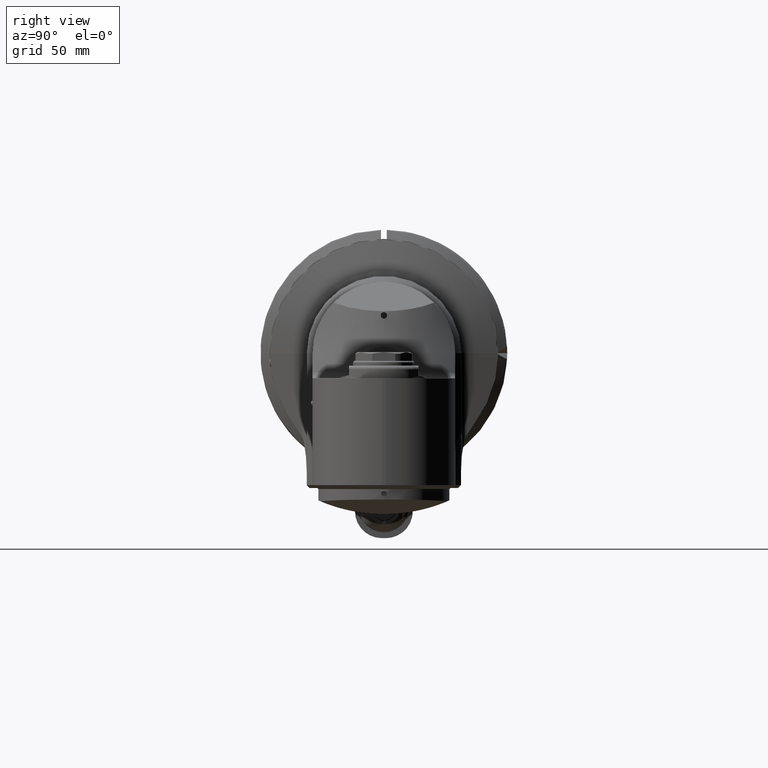
[diagram: clean part render]
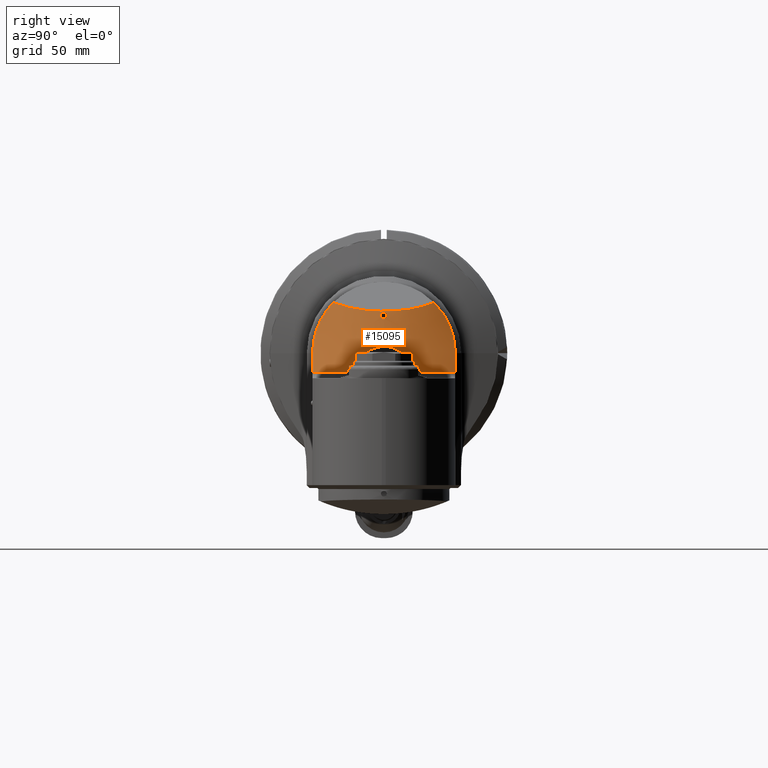
[diagram: same view with one face highlighted and labeled with its STEP entity id]
A machine part, right view. The second image highlights one B-rep face of the part: STEP entity #15095.
In plain terms, the highlighted conical surface has half-angle 15 deg.
Its self-contained STEP definition (entity closure, byte-faithful):
#64=ELLIPSE('',#16504,45.2327079516384,40.6734979024581);
#259=B_SPLINE_CURVE_WITH_KNOTS('',3,(#29457,#29458,#29459,#29460,#29461,
#29462,#29463,#29464,#29465,#29466),.UNSPECIFIED.,.F.,.F.,(4,2,2,2,4),(-3.93880779405568,
-3.93234595852805,-3.88077559646186,-3.82920523439567,-3.82510752058717),
 .UNSPECIFIED.);
#260=B_SPLINE_CURVE_WITH_KNOTS('',3,(#29472,#29473,#29474,#29475,#29476,
#29477,#29478,#29479,#29480,#29481,#29482),.UNSPECIFIED.,.F.,.F.,(4,2,2,
3,4),(-0.107238437898666,-0.103140724132375,-0.0515703620661875,0.,0.00646183552763091),
 .UNSPECIFIED.);
#261=B_SPLINE_CURVE_WITH_KNOTS('',3,(#29490,#29491,#29492,#29493,#29494,
#29495,#29496,#29497,#29498,#29499,#29500,#29501),.UNSPECIFIED.,.F.,.F.,
(4,2,2,2,2,4),(7.83011745301801,8.13771109030121,8.75014103835727,9.36257098641332,
9.97500093446938,10.7128732792265),.UNSPECIFIED.);
#262=B_SPLINE_CURVE_WITH_KNOTS('',3,(#29504,#29505,#29506,#29507,#29508,
#29509,#29510,#29511,#29512,#29513,#29514,#29515,#29516),.UNSPECIFIED.,
 .F.,.F.,(4,3,2,2,2,4),(-0.737872344757969,0.,0.612429948056057,1.22485989611211,
1.83728984416818,2.14488348145137),.UNSPECIFIED.);
#263=B_SPLINE_CURVE_WITH_KNOTS('',3,(#29519,#29520,#29521,#29522),
 .UNSPECIFIED.,.F.,.F.,(4,4),(-0.258888271933437,-0.255155175410212),
 .UNSPECIFIED.);
#264=B_SPLINE_CURVE_WITH_KNOTS('',3,(#29523,#29524,#29525,#29526,#29527,
#29528,#29529,#29530,#29531,#29532,#29533,#29534,#29535,#29536,#29537,#29538,
#29539,#29540,#29541,#29542,#29543,#29544,#29545,#29546,#29547,#29548,#29549,
#29550,#29551,#29552,#29553,#29554,#29555,#29556,#29557),.UNSPECIFIED.,
 .F.,.F.,(4,2,2,2,3,2,2,2,2,2,2,2,2,2,2,2,4),(-0.255155175410212,-0.192032972467768,
-0.128910769525324,-0.0644553847626618,0.,0.0638339596791877,0.127667919358375,
0.189299261879045,0.250930604399715,0.312561946920385,0.374193289441055,
0.438027249120242,0.50186120879943,0.566316593562091,0.630771978324753,
0.693894181267197,0.753283287686417),.UNSPECIFIED.);
#332=(
BOUNDED_CURVE()
B_SPLINE_CURVE(2,(#29348,#29349,#29350),.UNSPECIFIED.,.F.,.F.)
B_SPLINE_CURVE_WITH_KNOTS((3,3),(3.89343694831508,5.05087993316019),
 .UNSPECIFIED.)
CURVE()
GEOMETRIC_REPRESENTATION_ITEM()
RATIONAL_B_SPLINE_CURVE((1.02347810452841,1.02484759967335,1.02495644910587))
REPRESENTATION_ITEM('')
);
#333=(
BOUNDED_CURVE()
B_SPLINE_CURVE(2,(#29468,#29469,#29470),.UNSPECIFIED.,.F.,.F.)
B_SPLINE_CURVE_WITH_KNOTS((3,3),(-4.82862379861812,-0.175718801675515),
 .UNSPECIFIED.)
CURVE()
GEOMETRIC_REPRESENTATION_ITEM()
RATIONAL_B_SPLINE_CURVE((1.00518916361657,1.0713916248404,1.00518916361568))
REPRESENTATION_ITEM('')
);
#334=(
BOUNDED_CURVE()
B_SPLINE_CURVE(2,(#29486,#29487,#29488),.UNSPECIFIED.,.F.,.F.)
B_SPLINE_CURVE_WITH_KNOTS((3,3),(3.89343694831404,5.05087993314416),
 .UNSPECIFIED.)
CURVE()
GEOMETRIC_REPRESENTATION_ITEM()
RATIONAL_B_SPLINE_CURVE((1.02347810452841,1.02484759967333,1.02495644910587))
REPRESENTATION_ITEM('')
);
#486=CONICAL_SURFACE('',#16502,49.77933807096,0.261799387799149);
#3209=FACE_BOUND('',#5089,.T.);
#4176=FACE_OUTER_BOUND('',#5088,.T.);
#5088=EDGE_LOOP('',(#12613,#12614,#12615,#12616,#12617,#12618,#12619,#12620,
#12621,#12622));
#5089=EDGE_LOOP('',(#12623,#12624));
#5989=CIRCLE('',#16501,54.63629707971);
#5990=CIRCLE('',#16503,54.63629707971);
#7065=VERTEX_POINT('',#29330);
#7066=VERTEX_POINT('',#29347);
#7096=VERTEX_POINT('',#29422);
#7097=VERTEX_POINT('',#29456);
#7098=VERTEX_POINT('',#29467);
#7099=VERTEX_POINT('',#29471);
#7100=VERTEX_POINT('',#29483);
#7101=VERTEX_POINT('',#29485);
#7102=VERTEX_POINT('',#29489);
#7103=VERTEX_POINT('',#29502);
#7104=VERTEX_POINT('',#29517);
#7105=VERTEX_POINT('',#29518);
#9062=EDGE_CURVE('',#7066,#7065,#332,.T.);
#9100=EDGE_CURVE('',#7096,#7065,#5989,.T.);
#9101=EDGE_CURVE('',#7096,#7097,#259,.T.);
#9102=EDGE_CURVE('',#7097,#7098,#333,.T.);
#9103=EDGE_CURVE('',#7098,#7099,#260,.T.);
#9104=EDGE_CURVE('',#7100,#7099,#5990,.T.);
#9105=EDGE_CURVE('',#7101,#7100,#334,.T.);
#9106=EDGE_CURVE('',#7102,#7101,#261,.T.);
#9107=EDGE_CURVE('',#7103,#7102,#64,.T.);
#9108=EDGE_CURVE('',#7066,#7103,#262,.T.);
#9109=EDGE_CURVE('',#7104,#7105,#263,.T.);
#9110=EDGE_CURVE('',#7105,#7104,#264,.T.);
#12613=ORIENTED_EDGE('',*,*,#9100,.F.);
#12614=ORIENTED_EDGE('',*,*,#9101,.T.);
#12615=ORIENTED_EDGE('',*,*,#9102,.T.);
#12616=ORIENTED_EDGE('',*,*,#9103,.T.);
#12617=ORIENTED_EDGE('',*,*,#9104,.F.);
#12618=ORIENTED_EDGE('',*,*,#9105,.F.);
#12619=ORIENTED_EDGE('',*,*,#9106,.F.);
#12620=ORIENTED_EDGE('',*,*,#9107,.F.);
#12621=ORIENTED_EDGE('',*,*,#9108,.F.);
#12622=ORIENTED_EDGE('',*,*,#9062,.T.);
#12623=ORIENTED_EDGE('',*,*,#9109,.T.);
#12624=ORIENTED_EDGE('',*,*,#9110,.T.);
#15095=ADVANCED_FACE('',(#4176,#3209),#486,.T.);
#16501=AXIS2_PLACEMENT_3D('',#29454,#19702,#19703);
#16502=AXIS2_PLACEMENT_3D('',#29455,#19704,#19705);
#16503=AXIS2_PLACEMENT_3D('',#29484,#19706,#19707);
#16504=AXIS2_PLACEMENT_3D('',#29503,#19708,#19709);
#19702=DIRECTION('center_axis',(0.,1.,0.));
#19703=DIRECTION('ref_axis',(0.935940014753267,0.,-0.352159464992288));
#19704=DIRECTION('center_axis',(0.,1.,0.));
#19705=DIRECTION('ref_axis',(1.,0.,0.));
#19706=DIRECTION('center_axis',(0.,1.,0.));
#19707=DIRECTION('ref_axis',(0.735792793525998,0.,0.677206737263598));
#19708=DIRECTION('center_axis',(0.422618261740719,-0.906307787036641,0.));
#19709=DIRECTION('ref_axis',(0.906307787036641,0.422618261740719,0.));
#29330=CARTESIAN_POINT('',(90.2010566322194,10.0352760630825,-37.0000000108094));
#29347=CARTESIAN_POINT('',(86.4626845689849,-4.01972997164142E-6,-36.9999959620745));
#29348=CARTESIAN_POINT('Ctrl Pts',(86.46268456966,-3.97102103296424E-6,
-37.));
#29349=CARTESIAN_POINT('Ctrl Pts',(88.2847138334658,4.77295963239363,-37.));
#29350=CARTESIAN_POINT('Ctrl Pts',(90.2010566007878,10.0352759494438,-37.));
#29422=CARTESIAN_POINT('',(101.1362966948,10.03527618041,-19.24068914875));
#29454=CARTESIAN_POINT('Origin',(50.,10.03527618041,0.));
#29455=CARTESIAN_POINT('Origin',(50.,-8.091141610524,0.));
#29456=CARTESIAN_POINT('',(101.,9.,-18.81195199136));
#29457=CARTESIAN_POINT('Ctrl Pts',(101.136296694841,10.0352761803986,-19.24068914876));
#29458=CARTESIAN_POINT('Ctrl Pts',(101.130747459301,10.014566151421,-19.2396797084859));
#29459=CARTESIAN_POINT('Ctrl Pts',(101.125362361978,9.9938024286461,-19.2381931215031));
#29460=CARTESIAN_POINT('Ctrl Pts',(101.078503959601,9.80695310060551,-19.2205605619935));
#29461=CARTESIAN_POINT('Ctrl Pts',(101.04896924554,9.64379454947181,-19.1749750397948));
#29462=CARTESIAN_POINT('Ctrl Pts',(101.010394636083,9.32898398586055,-19.0374320645109));
#29463=CARTESIAN_POINT('Ctrl Pts',(101.001363454202,9.17735157703708,-18.9454273034241));
#29464=CARTESIAN_POINT('Ctrl Pts',(101.000047761807,9.02262305592093,-18.8293333719294));
#29465=CARTESIAN_POINT('Ctrl Pts',(101.,9.01128517062174,-18.8206896957109));
#29466=CARTESIAN_POINT('Ctrl Pts',(101.,8.99999999999688,-18.811951991364));
#29467=CARTESIAN_POINT('',(101.,9.00000000031,18.81195199168));
#29468=CARTESIAN_POINT('Ctrl Pts',(101.,8.99999999999688,-18.811951991364));
#29469=CARTESIAN_POINT('Ctrl Pts',(101.,-15.2965519985759,1.1882939077168E-10));
#29470=CARTESIAN_POINT('Ctrl Pts',(101.,9.0000000003456,18.811951991634));
#29471=CARTESIAN_POINT('',(101.1362966948,10.03527618041,19.24068914875));
#29472=CARTESIAN_POINT('Ctrl Pts',(101.,9.0000000003456,18.811951991634));
#29473=CARTESIAN_POINT('Ctrl Pts',(101.000000000001,9.0112851708553,18.8206896958889));
#29474=CARTESIAN_POINT('Ctrl Pts',(101.000047761808,9.02262305603823,18.8293333720174));
#29475=CARTESIAN_POINT('Ctrl Pts',(101.001363454202,9.17735157703706,18.9454273034241));
#29476=CARTESIAN_POINT('Ctrl Pts',(101.010394636083,9.32898398586054,19.0374320645109));
#29477=CARTESIAN_POINT('Ctrl Pts',(101.04896924554,9.64379454947181,19.1749750397948));
#29478=CARTESIAN_POINT('Ctrl Pts',(101.078503959601,9.80695310060551,19.2205605619935));
#29479=CARTESIAN_POINT('Ctrl Pts',(101.120144718983,9.9729969159082,19.2362297510948));
#29480=CARTESIAN_POINT('Ctrl Pts',(101.125362361978,9.99380242864611,19.2381931215031));
#29481=CARTESIAN_POINT('Ctrl Pts',(101.130747459301,10.014566151421,19.2396797084859));
#29482=CARTESIAN_POINT('Ctrl Pts',(101.136296694841,10.0352761803986,19.24068914876));
#29483=CARTESIAN_POINT('',(90.2010566321862,10.0352760630085,37.0000000108162));
#29484=CARTESIAN_POINT('Origin',(50.,10.03527618041,0.));
#29485=CARTESIAN_POINT('',(86.4626845689816,-4.01973773215539E-6,36.9999959620687));
#29486=CARTESIAN_POINT('Ctrl Pts',(86.4626845696567,-3.97102967282114E-6,
37.));
#29487=CARTESIAN_POINT('Ctrl Pts',(88.2847138334388,4.77295963232287,37.));
#29488=CARTESIAN_POINT('Ctrl Pts',(90.2010566007347,10.035275949298,37.));
#29489=CARTESIAN_POINT('',(86.55653924509,-26.21755940146,26.10822818636));
#29490=CARTESIAN_POINT('Ctrl Pts',(86.5565392450911,-26.2175594014586,26.108228186359));
#29491=CARTESIAN_POINT('Ctrl Pts',(86.2768888526062,-25.4966435956153,26.8321629102412));
#29492=CARTESIAN_POINT('Ctrl Pts',(86.001102874982,-24.7351619229832,27.5366436284816));
#29493=CARTESIAN_POINT('Ctrl Pts',(85.2173472460032,-22.3485524778202,29.561511092058));
#29494=CARTESIAN_POINT('Ctrl Pts',(84.7507205209947,-20.6141001046456,30.7992582378357));
#29495=CARTESIAN_POINT('Ctrl Pts',(84.0888161937487,-16.9442516970133,32.9609974858682));
#29496=CARTESIAN_POINT('Ctrl Pts',(83.8958462434458,-15.0038043822077,33.8873230671693));
#29497=CARTESIAN_POINT('Ctrl Pts',(83.8909389532353,-11.0483389589965,35.3751186117763));
#29498=CARTESIAN_POINT('Ctrl Pts',(84.0804611364451,-9.03330008657114,35.9365378272746));
#29499=CARTESIAN_POINT('Ctrl Pts',(84.8820845767981,-4.68566056015245,36.7818189686342));
#29500=CARTESIAN_POINT('Ctrl Pts',(85.5762747721496,-2.32203194516505,36.9999997481057));
#29501=CARTESIAN_POINT('Ctrl Pts',(86.462684553342,-4.01376790637453E-6,
36.9999999999998));
#29502=CARTESIAN_POINT('',(86.55653924509,-26.21755940146,-26.10822818636));
#29503=CARTESIAN_POINT('Origin',(55.1221618873939,-40.875650292684,8.88178419700125E-15));
#29504=CARTESIAN_POINT('Ctrl Pts',(86.462684553345,-4.01376003711373E-6,
-36.9999999999998));
#29505=CARTESIAN_POINT('Ctrl Pts',(85.5762747721511,-2.3220319451597,-36.9999997481062));
#29506=CARTESIAN_POINT('Ctrl Pts',(84.8820845767986,-4.68566056014976,-36.7818189686347));
#29507=CARTESIAN_POINT('Ctrl Pts',(84.4440376515328,-7.06142707450374,-36.3199153037485));
#29508=CARTESIAN_POINT('Ctrl Pts',(84.0804611364451,-9.03330008657114,-35.9365378272746));
#29509=CARTESIAN_POINT('Ctrl Pts',(83.8909389532353,-11.0483389589965,-35.3751186117764));
#29510=CARTESIAN_POINT('Ctrl Pts',(83.8958462434458,-15.0038043822077,-33.8873230671693));
#29511=CARTESIAN_POINT('Ctrl Pts',(84.0888161937486,-16.9442516970132,-32.9609974858682));
#29512=CARTESIAN_POINT('Ctrl Pts',(84.7507205209947,-20.6141001046456,-30.7992582378357));
#29513=CARTESIAN_POINT('Ctrl Pts',(85.2173472460032,-22.3485524778202,-29.561511092058));
#29514=CARTESIAN_POINT('Ctrl Pts',(86.0011028749819,-24.7351619229832,-27.5366436284815));
#29515=CARTESIAN_POINT('Ctrl Pts',(86.2768888526062,-25.4966435956153,-26.8321629102412));
#29516=CARTESIAN_POINT('Ctrl Pts',(86.5565392450911,-26.2175594014586,-26.108228186359));
#29517=CARTESIAN_POINT('',(97.16433100368,-17.85042532367,0.0374618099773));
#29518=CARTESIAN_POINT('',(97.1644598464502,-17.85,-2.02066721859313E-16));
#29519=CARTESIAN_POINT('Ctrl Pts',(97.1643310036861,-17.8504253236688,0.0374618099773217));
#29520=CARTESIAN_POINT('Ctrl Pts',(97.1644171931678,-17.8501407988715,0.0249331868097444));
#29521=CARTESIAN_POINT('Ctrl Pts',(97.1644598464502,-17.85,0.0124436550774163));
#29522=CARTESIAN_POINT('Ctrl Pts',(97.1644598464502,-17.85,-2.60208521396521E-16));
#29523=CARTESIAN_POINT('Ctrl Pts',(97.1644598464502,-17.85,4.16333634234434E-16));
#29524=CARTESIAN_POINT('Ctrl Pts',(97.1644598464502,-17.85,-0.21040734314148));
#29525=CARTESIAN_POINT('Ctrl Pts',(97.1514560183184,-17.8927370983568,-0.433863439021672));
#29526=CARTESIAN_POINT('Ctrl Pts',(97.1000337334505,-18.0639948309032,-0.842271134451891));
#29527=CARTESIAN_POINT('Ctrl Pts',(97.0617153560573,-18.1924557350379,-1.02726037235293));
#29528=CARTESIAN_POINT('Ctrl Pts',(96.9751280233617,-18.4882494602816,-1.32026822999746));
#29529=CARTESIAN_POINT('Ctrl Pts',(96.920819370097,-18.6763469218699,-1.44671172657098));
#29530=CARTESIAN_POINT('Ctrl Pts',(96.8055138998606,-19.086257650177,-1.61251244875205));
#29531=CARTESIAN_POINT('Ctrl Pts',(96.7445890393516,-19.3080829339339,-1.65188999771562));
#29532=CARTESIAN_POINT('Ctrl Pts',(96.6890161249984,-19.5156133365528,-1.6499261267468));
#29533=CARTESIAN_POINT('Ctrl Pts',(96.6339789983543,-19.7211429040475,-1.64798118978458));
#29534=CARTESIAN_POINT('Ctrl Pts',(96.5766060506088,-19.9409893704056,-1.60516055666292));
#29535=CARTESIAN_POINT('Ctrl Pts',(96.473481763905,-20.3465839715048,-1.43328557404298));
#29536=CARTESIAN_POINT('Ctrl Pts',(96.4276665963666,-20.5322930512497,-1.30417737090209));
#29537=CARTESIAN_POINT('Ctrl Pts',(96.357685251391,-20.8207364155696,-1.00954359860029));
#29538=CARTESIAN_POINT('Ctrl Pts',(96.3283311962023,-20.9445965186002,-0.826334763860273));
#29539=CARTESIAN_POINT('Ctrl Pts',(96.289638556945,-21.109245231183,-0.424285309255875));
#29540=CARTESIAN_POINT('Ctrl Pts',(96.2802275114275,-21.15,-0.205437808402232));
#29541=CARTESIAN_POINT('Ctrl Pts',(96.2802275114275,-21.15,0.205437808402234));
#29542=CARTESIAN_POINT('Ctrl Pts',(96.289638556945,-21.109245231183,0.424285309255877));
#29543=CARTESIAN_POINT('Ctrl Pts',(96.3283311962023,-20.9445965186002,0.826334763860276));
#29544=CARTESIAN_POINT('Ctrl Pts',(96.357685251391,-20.8207364155696,1.00954359860029));
#29545=CARTESIAN_POINT('Ctrl Pts',(96.4276665963666,-20.5322930512497,1.30417737090209));
#29546=CARTESIAN_POINT('Ctrl Pts',(96.473481763905,-20.3465839715048,1.43328557404298));
#29547=CARTESIAN_POINT('Ctrl Pts',(96.5766060506088,-19.9409893704056,1.60516055666292));
#29548=CARTESIAN_POINT('Ctrl Pts',(96.6339789983543,-19.7211429040475,1.64798118978458));
#29549=CARTESIAN_POINT('Ctrl Pts',(96.7445890393516,-19.3080829339339,1.65188999771562));
#29550=CARTESIAN_POINT('Ctrl Pts',(96.8055138998606,-19.086257650177,1.61251244875205));
#29551=CARTESIAN_POINT('Ctrl Pts',(96.920819370097,-18.6763469218699,1.44671172657098));
#29552=CARTESIAN_POINT('Ctrl Pts',(96.9751280233617,-18.4882494602816,1.32026822999746));
#29553=CARTESIAN_POINT('Ctrl Pts',(97.0617153560573,-18.1924557350379,1.02726037235293));
#29554=CARTESIAN_POINT('Ctrl Pts',(97.1000337334505,-18.0639948309032,0.842271134451891));
#29555=CARTESIAN_POINT('Ctrl Pts',(97.1499354412163,-17.897801256578,0.445940214520612));
#29556=CARTESIAN_POINT('Ctrl Pts',(97.1629598319865,-17.8549517733224,0.236777238859603));
#29557=CARTESIAN_POINT('Ctrl Pts',(97.1643310036861,-17.8504253236688,0.0374618099773213));